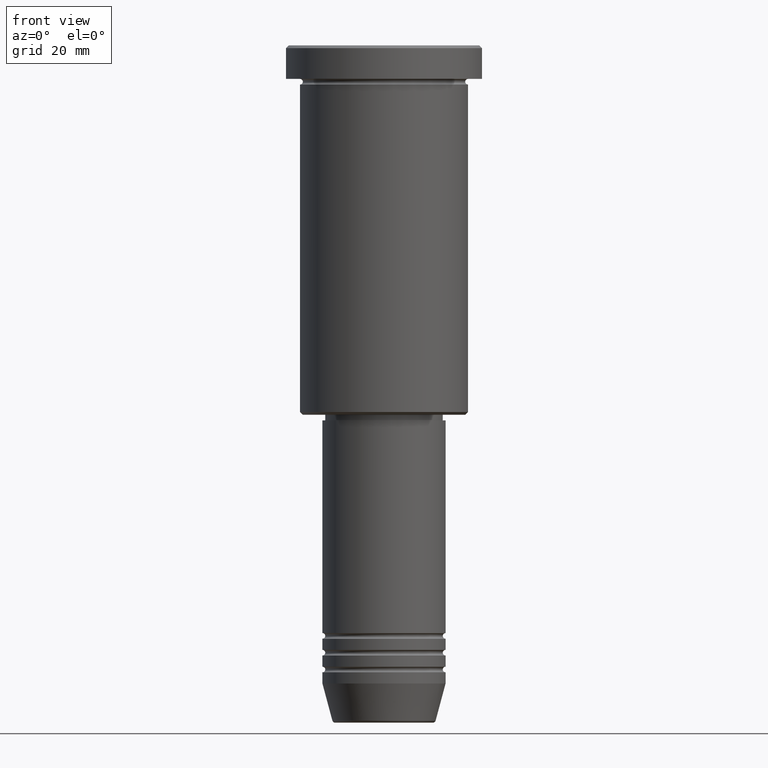
[diagram: clean part render]
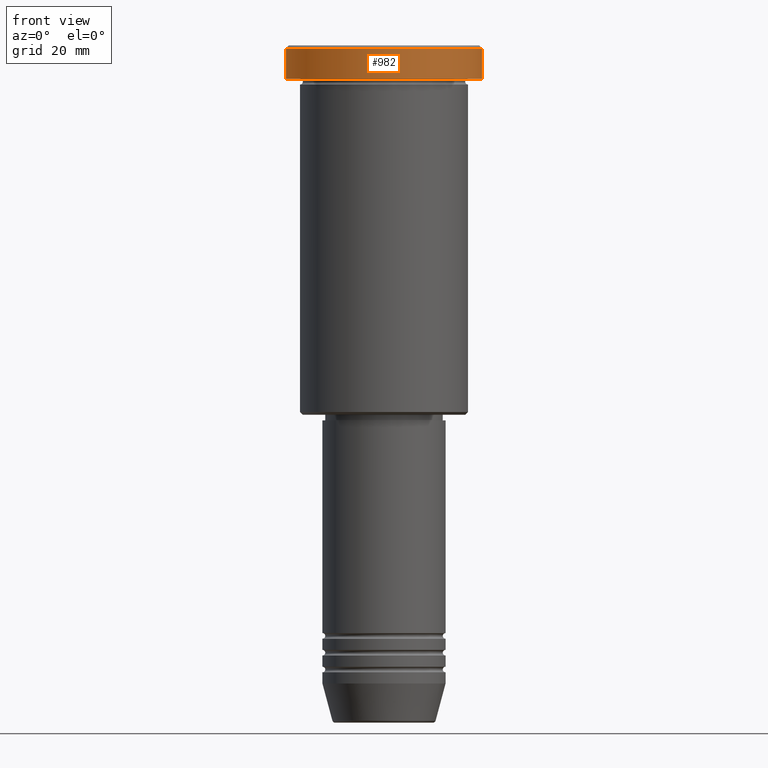
[diagram: same view with one face highlighted and labeled with its STEP entity id]
A machine part, front view. The second image highlights one B-rep face of the part: STEP entity #982.
In plain terms, the highlighted cylindrical surface (partial cylindrical patch) has radius 17.5 mm, axis along (-0, -0, 1).
Its self-contained STEP definition (entity closure, byte-faithful):
#14 = AXIS2_PLACEMENT_3D ( 'NONE', #411, #668, #597 ) ;
#43 = CARTESIAN_POINT ( 'NONE',  ( -17.50000000000000000, 2.143131898507868248E-15, 0.000000000000000000 ) ) ;
#46 = FACE_OUTER_BOUND ( 'NONE', #488, .T. ) ;
#66 = CARTESIAN_POINT ( 'NONE',  ( -17.50000000000000000, 2.143131898507868248E-15, -0.5000000000000143219 ) ) ;
#103 = CARTESIAN_POINT ( 'NONE',  ( 17.50000000000000000, 0.000000000000000000, -0.5000000000000143219 ) ) ;
#105 = AXIS2_PLACEMENT_3D ( 'NONE', #173, #985, #625 ) ;
#122 = CYLINDRICAL_SURFACE ( 'NONE', #14, 17.50000000000000000 ) ;
#129 = LINE ( 'NONE', #43, #348 ) ;
#136 = ORIENTED_EDGE ( 'NONE', *, *, #175, .T. ) ;
#173 = CARTESIAN_POINT ( 'NONE',  ( 0.000000000000000000, 0.000000000000000000, -0.5000000000000143219 ) ) ;
#175 = EDGE_CURVE ( 'NONE', #180, #853, #659, .T. ) ;
#180 = VERTEX_POINT ( 'NONE', #506 ) ;
#192 = DIRECTION ( 'NONE',  ( -0.000000000000000000, -0.000000000000000000, 1.000000000000000000 ) ) ;
#264 = VERTEX_POINT ( 'NONE', #326 ) ;
#278 = CARTESIAN_POINT ( 'NONE',  ( 0.000000000000000000, 0.000000000000000000, -5.999999999999995559 ) ) ;
#326 = CARTESIAN_POINT ( 'NONE',  ( -17.50000000000000000, 2.143131898507868248E-15, -5.999999999999995559 ) ) ;
#340 = EDGE_CURVE ( 'NONE', #264, #1164, #129, .T. ) ;
#348 = VECTOR ( 'NONE', #567, 1000.000000000000000 ) ;
#411 = CARTESIAN_POINT ( 'NONE',  ( 0.000000000000000000, 0.000000000000000000, 0.000000000000000000 ) ) ;
#475 = EDGE_CURVE ( 'NONE', #264, #180, #1122, .T. ) ;
#479 = DIRECTION ( 'NONE',  ( 1.000000000000000000, 0.000000000000000000, 0.000000000000000000 ) ) ;
#488 = EDGE_LOOP ( 'NONE', ( #677, #1129, #136, #1147 ) ) ;
#506 = CARTESIAN_POINT ( 'NONE',  ( 17.50000000000000000, 0.000000000000000000, -5.999999999999995559 ) ) ;
#567 = DIRECTION ( 'NONE',  ( -0.000000000000000000, -0.000000000000000000, 1.000000000000000000 ) ) ;
#597 = DIRECTION ( 'NONE',  ( 1.000000000000000000, 0.000000000000000000, 0.000000000000000000 ) ) ;
#601 = CARTESIAN_POINT ( 'NONE',  ( 17.50000000000000000, 0.000000000000000000, 0.000000000000000000 ) ) ;
#606 = DIRECTION ( 'NONE',  ( -0.000000000000000000, -0.000000000000000000, 1.000000000000000000 ) ) ;
#625 = DIRECTION ( 'NONE',  ( 1.000000000000000000, 0.000000000000000000, 0.000000000000000000 ) ) ;
#653 = EDGE_CURVE ( 'NONE', #853, #1164, #664, .T. ) ;
#659 = LINE ( 'NONE', #601, #1166 ) ;
#664 = CIRCLE ( 'NONE', #105, 17.50000000000000000 ) ;
#668 = DIRECTION ( 'NONE',  ( -0.000000000000000000, -0.000000000000000000, 1.000000000000000000 ) ) ;
#677 = ORIENTED_EDGE ( 'NONE', *, *, #340, .F. ) ;
#805 = AXIS2_PLACEMENT_3D ( 'NONE', #278, #192, #479 ) ;
#853 = VERTEX_POINT ( 'NONE', #103 ) ;
#982 = ADVANCED_FACE ( 'NONE', ( #46 ), #122, .T. ) ;
#985 = DIRECTION ( 'NONE',  ( 0.000000000000000000, 0.000000000000000000, -1.000000000000000000 ) ) ;
#1122 = CIRCLE ( 'NONE', #805, 17.50000000000000000 ) ;
#1129 = ORIENTED_EDGE ( 'NONE', *, *, #475, .T. ) ;
#1147 = ORIENTED_EDGE ( 'NONE', *, *, #653, .T. ) ;
#1164 = VERTEX_POINT ( 'NONE', #66 ) ;
#1166 = VECTOR ( 'NONE', #606, 1000.000000000000000 ) ;